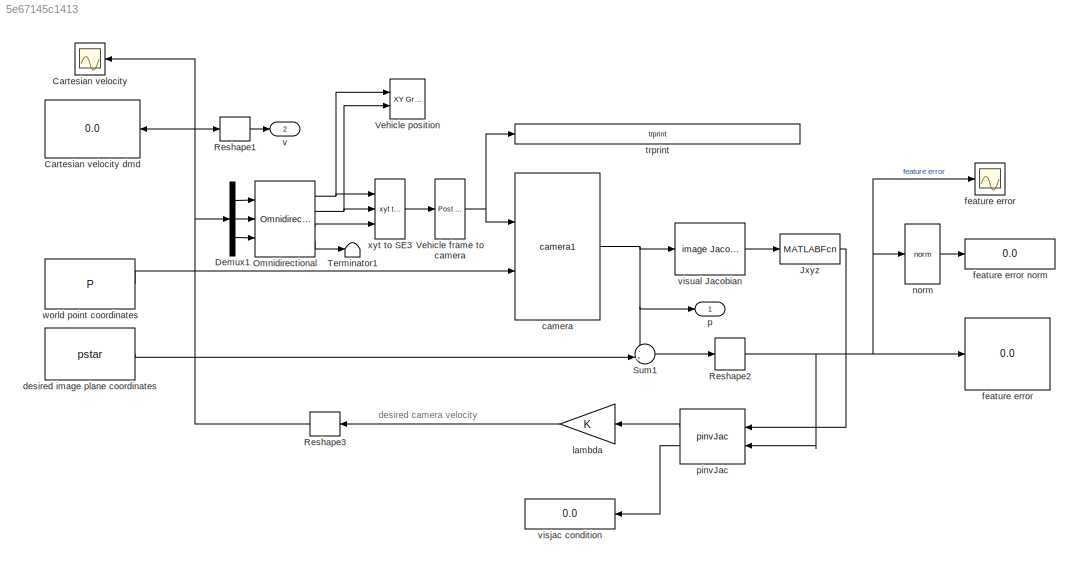
MODEL slx_5e67145c1413
KIND model
CONFIG AbsTol = auto
CONFIG FixedStep = auto
CONFIG InitFcn = camera = CentralCamera('default', 'name', 'mobile_vs', 'focal', 0.002);\nT_vc = transl(0.2, 0.1, 0.3)*troty(pi/2)*trotz(-pi/2); %*trotx(-pi/4);   \nP = [0 0; 1 -1; 2 2];\npstar = camera.project(P, 'Tcam', transl(-2, 0, 0)*T_vc);
CONFIG MaxStep = auto
CONFIG MinStep = auto
CONFIG RelTol = 1e-3
CONFIG SampleTimeConstraint = Unconstrained
CONFIG Solver = ode45
CONFIG SolverMode = Auto
CONFIG SolverName = ode45
CONFIG StartTime = 0.0
CONFIG StopTime = 10
BLOCK [Scope] Cartesian velocity
  Ports = [1]
  ScopeSpecificationString = Simulink.scopes.TimeScopeBlockCfg('CurrentConfiguration', extmgr.ConfigurationSet(extmgr.Configuration('Core','General UI',true),extmgr.Configuration('Core','Source UI',true),extmgr.Configuration('Sources','WiredSimulink',true,'DataLoggingSaveFormat','StructureWithTime','DataLoggingLimitDataPoints',true,'DataLoggingDecimation','1','DataLoggingDecimateData',true,'DataLoggingVariableName','ScopeData...<+1727ch>
BLOCK [Display] Cartesian velocity dmd
  Decimation = 1
  Format = bank
  Ports = [1]
BLOCK [Demux] Demux1
  DisplayOption = bar
  Outputs = 3
  Ports = [1, 3]
BLOCK [MATLABFcn] Jxyz
  MATLABFcn = [u(:,3) -u(:,1) -u(:,5)]
  Output1D = off
  Ports = [1, 1]
BLOCK [Reference] Omnidirectional  REF=roblocks/Vehicles/Omnidirectional  (lib defined in mdl_2a292b13c81b, mdl_69400f8cfe22, +12 more)
  Ports = [3, 4]
  SourceBlock = roblocks/Vehicles/Omnidirectional
BLOCK [Reshape] Reshape1
  OutputDimensions = 6
  Ports = [1, 1]
BLOCK [Reshape] Reshape2
  OutputDimensions = 6
  Ports = [1, 1]
BLOCK [Reshape] Reshape3
  OutputDimensions = 6
  Ports = [1, 1]
BLOCK [Sum] Sum1
  IconShape = round
  Inputs = -+|
  Ports = [2, 1]
BLOCK [Terminator] Terminator1
BLOCK [Reference] Vehicle frame to camera  REF=roblocks/Toolbox/Post multiply  (lib defined in mdl_2a292b13c81b, mdl_69400f8cfe22, +12 more)
  Ports = [1, 1]
  SourceBlock = roblocks/Toolbox/Post multiply
BLOCK [Reference] Vehicle position  REF=simulink/Sinks/XY Graph
  Ports = [2]
  SourceBlock = simulink/Sinks/XY Graph
  SourceType = XY scope.
BLOCK [Reference] camera  REF=roblocks/Vision/camera1  (lib defined in mdl_2a292b13c81b, mdl_69400f8cfe22, +12 more)
  Ports = [2, 1]
  SourceBlock = roblocks/Vision/camera1
BLOCK [Constant] desired image plane coordinates
  Value = pstar
  VectorParams1D = off
BLOCK [Display] feature error
  Decimation = 1
  Format = bank
  Ports = [1]
BLOCK [Scope] feature error 
  Ports = [1]
  ScopeSpecificationString = Simulink.scopes.TimeScopeBlockCfg('CurrentConfiguration', extmgr.ConfigurationSet(extmgr.Configuration('Core','General UI',true),extmgr.Configuration('Core','Source UI',true),extmgr.Configuration('Sources','WiredSimulink',true,'DataLoggingVariableName','ScopeData3','DataLoggingSaveFormat','StructureWithTime','DataLoggingLimitDataPoints',true,'DataLoggingDecimation','1','DataLoggingDecimateData',tr...<+1701ch>
BLOCK [Display] feature error norm
  Decimation = 1
  Ports = [1]
BLOCK [Gain] lambda
BLOCK [Reference] norm  REF=roblocks/Toolbox/norm  (lib defined in mdl_2a292b13c81b, mdl_69400f8cfe22, +12 more)
  Ports = [1, 1]
  SourceBlock = roblocks/Toolbox/norm
BLOCK [Outport] p
  IconDisplay = Port number
BLOCK [Reference] pinvJac  REF=roblocks/Toolbox/pinvJac  (lib defined in mdl_2a292b13c81b, mdl_69400f8cfe22, +12 more)
  Ports = [2, 2]
  SourceBlock = roblocks/Toolbox/pinvJac
BLOCK [Reference] trprint  REF=roblocks/Toolbox/trprint  (lib defined in mdl_2a292b13c81b, mdl_69400f8cfe22, +12 more)
  Ports = [1]
  SourceBlock = roblocks/Toolbox/trprint
BLOCK [Outport] v
  IconDisplay = Port number
  Port = 2
BLOCK [Display] visjac condition
  Decimation = 1
  Ports = [1]
BLOCK [Reference] visual Jacobian  REF=roblocks/Vision/image  (lib defined in mdl_2a292b13c81b, mdl_69400f8cfe22, +12 more)
Jacobian
  Ports = [1, 1]
  SourceBlock = roblocks/Vision/image\nJacobian
BLOCK [Constant] world point coordinates
  Value = P
  VectorParams1D = off
BLOCK [Reference] xyt to SE3  REF=roblocks/Toolbox/xyt to SE3  (lib defined in mdl_2a292b13c81b, mdl_69400f8cfe22, +12 more)
  Ports = [3, 1]
  SourceBlock = roblocks/Toolbox/xyt to SE3
ANNOTATION (root): desired camera velocity
LINE Demux1:1 -> Omnidirectional:1
LINE Demux1:2 -> Omnidirectional:2
LINE Demux1:3 -> Omnidirectional:3
LINE Jxyz:1 -> pinvJac:1
NET Omnidirectional:1 -> Vehicle position:1, xyt to SE3:1
NET Omnidirectional:2 -> Vehicle position:2, xyt to SE3:2
LINE Omnidirectional:3 -> xyt to SE3:3
LINE Omnidirectional:4 -> Terminator1:1
LINE Reshape1:1 -> v:1
NET Reshape2:1 -> feature error :1, feature error:1, norm:1, pinvJac:2
NET Reshape3:1 -> Cartesian velocity dmd:1, Cartesian velocity:1, Demux1:1, Reshape1:1
LINE Sum1:1 -> Reshape2:1
NET Vehicle frame to camera:1 -> camera:1, trprint:1
NET camera:1 -> Sum1:1, p:1, visual Jacobian:1
LINE desired image plane coordinates:1 -> Sum1:2
LINE lambda:1 -> Reshape3:1
LINE norm:1 -> feature error norm:1
LINE pinvJac:1 -> lambda:1
LINE pinvJac:2 -> visjac condition:1
LINE visual Jacobian:1 -> Jxyz:1
LINE world point coordinates:1 -> camera:2
LINE xyt to SE3:1 -> Vehicle frame to camera:1
note: NET lines group one-source signal fan-out (src -> all destinations, sorted); 1:1 wires keep LINE
